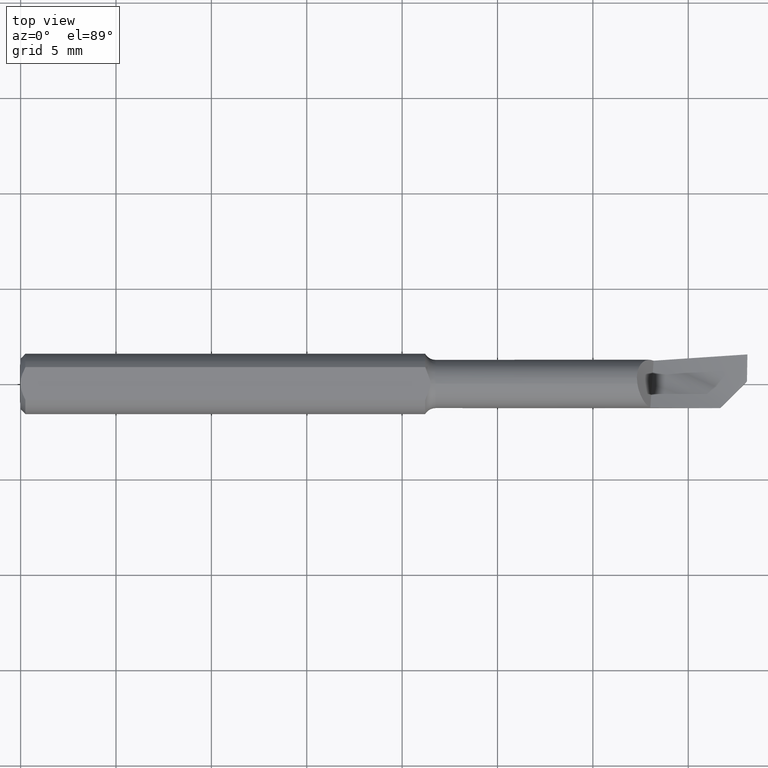
[diagram: clean part render]
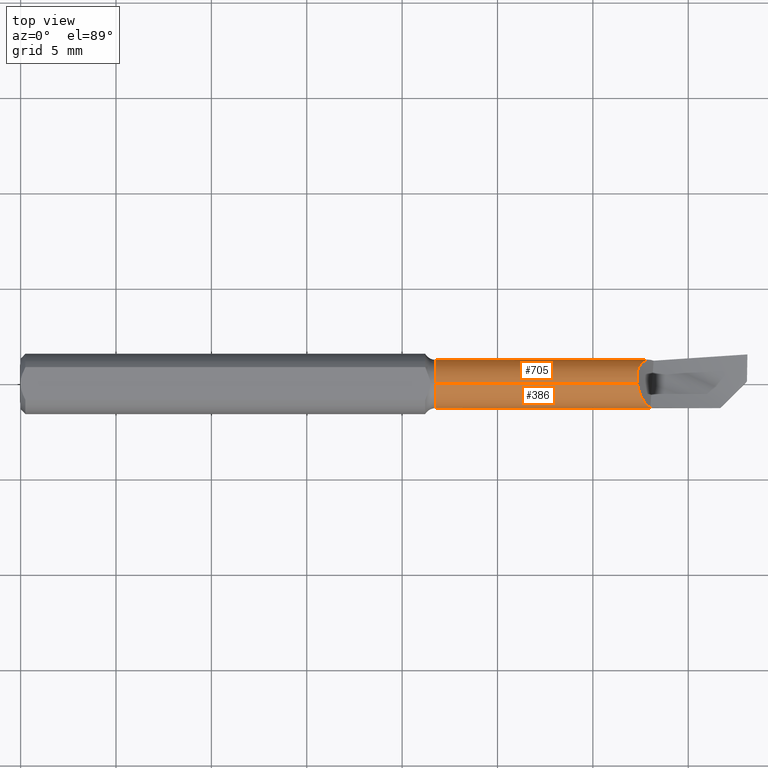
[diagram: same view with one multi-face feature highlighted, each face labeled with its STEP entity id]
A machine part, top view. The highlighted faces form ONE feature: a constant-radius fillet chain: 2 tangent blend faces with common blend radius 1.27 mm. The faces share edges in the B-rep.
Their STEP definitions:
[1] entity #705 (Cylinder):
#14 = EDGE_CURVE ( 'NONE', #366, #439, #29, .T. ) ;
#17 = CARTESIAN_POINT ( 'NONE',  ( 1.271999999999999353, 0.01144693767717875482, 0.04863410044569864421 ) ) ;
#28 = DIRECTION ( 'NONE',  ( 0.000000000000000000, 0.000000000000000000, 1.000000000000000000 ) ) ;
#29 = CIRCLE ( 'NONE', #216, 0.04999999999999994726 ) ;
#51 = CARTESIAN_POINT ( 'NONE',  ( 1.294453643555776967, 0.04971688587173973828, 0.005318045818284486588 ) ) ;
#59 = CARTESIAN_POINT ( 'NONE',  ( 1.298548844892721377, 0.05035006557924973092, -0.001138132953307220956 ) ) ;
#68 = AXIS2_PLACEMENT_3D ( 'NONE', #739, #743, #188 ) ;
#83 = AXIS2_PLACEMENT_3D ( 'NONE', #227, #291, #786 ) ;
#89 = ORIENTED_EDGE ( 'NONE', *, *, #550, .T. ) ;
#101 = CARTESIAN_POINT ( 'NONE',  ( 0.8565633369402790853, 0.000000000000000000, 0.000000000000000000 ) ) ;
#104 = CARTESIAN_POINT ( 'NONE',  ( 1.272000000000000242, 0.01020335030451826469, 0.04894784614835758635 ) ) ;
#112 = CARTESIAN_POINT ( 'NONE',  ( 1.290459041779026705, 0.04864344607906900125, 0.01168911797366625413 ) ) ;
#114 = CARTESIAN_POINT ( 'NONE',  ( 1.272000000000000242, 0.01393758859474910662, 0.04801815931669515397 ) ) ;
#121 = CIRCLE ( 'NONE', #277, 0.05000000000000000278 ) ;
#122 = CARTESIAN_POINT ( 'NONE',  ( 1.273228335987194759, 0.02612359200498260217, 0.04317630147463594192 ) ) ;
#125 = CARTESIAN_POINT ( 'NONE',  ( 1.293750799828678577, 0.04958838834706445070, 0.006429515155052734771 ) ) ;
#127 = EDGE_LOOP ( 'NONE', ( #248, #163, #134, #738, #219, #482, #89, #581, #741 ) ) ;
#134 = ORIENTED_EDGE ( 'NONE', *, *, #14, .F. ) ;
#150 = B_SPLINE_CURVE_WITH_KNOTS ( 'NONE', 3,
 ( #624, #207, #575, #507, #459, #712, #202, #104 ),
 .UNSPECIFIED., .F., .F.,
 ( 4, 2, 1, 1, 4 ),
 ( 0.8765689127104218104, 0.8919977986216192090, 0.9074266845328166076, 0.9382844563552112938, 1.000000000000000000 ),
 .UNSPECIFIED. ) ;
#155 = CARTESIAN_POINT ( 'NONE',  ( 1.310000000000000053, 0.04832009609053197763, -0.01285178251456811117 ) ) ;
#163 = ORIENTED_EDGE ( 'NONE', *, *, #383, .T. ) ;
#168 = CARTESIAN_POINT ( 'NONE',  ( 1.289492521908184974, 0.04823663695637771254, 0.01325218206853705748 ) ) ;
#170 = CARTESIAN_POINT ( 'NONE',  ( 1.276190413930434087, 0.03408954215728249304, 0.03673638363495675824 ) ) ;
#171 = CARTESIAN_POINT ( 'NONE',  ( 1.280343423329403763, 0.04094107647577319847, 0.02875783306268285197 ) ) ;
#175 = CARTESIAN_POINT ( 'NONE',  ( 1.294619589611228694, 0.04974405281156731723, 0.005056162639037449155 ) ) ;
#179 = CARTESIAN_POINT ( 'NONE',  ( 1.281594342010526244, 0.04240060075204869772, 0.02651386867715513351 ) ) ;
#188 = DIRECTION ( 'NONE',  ( 0.000000000000000000, 0.000000000000000000, 1.000000000000000000 ) ) ;
#201 = VERTEX_POINT ( 'NONE', #422 ) ;
#202 = CARTESIAN_POINT ( 'NONE',  ( 1.272042441811594538, 0.008559122833725755705, 0.04929059197129349174 ) ) ;
#207 = CARTESIAN_POINT ( 'NONE',  ( 1.272849093676704513, 0.0003652632116984247434, 0.05000000938892967123 ) ) ;
#216 = AXIS2_PLACEMENT_3D ( 'NONE', #101, #269, #28 ) ;
#219 = ORIENTED_EDGE ( 'NONE', *, *, #405, .T. ) ;
#223 = CARTESIAN_POINT ( 'NONE',  ( 1.282241067984225769, 0.04310296080646883882, 0.02536829013857555895 ) ) ;
#227 = CARTESIAN_POINT ( 'NONE',  ( 1.310000000000000275, 0.000000000000000000, 0.000000000000000000 ) ) ;
#229 = B_SPLINE_CURVE_WITH_KNOTS ( 'NONE', 3,
 ( #236, #731, #122, #170, #527, #480, #171, #179, #223, #410, #665, #597, #421, #728, #288, #168, #112, #284, #412, #125, #470, #51, #175, #59, #657, #794 ),
 .UNSPECIFIED., .F., .F.,
 ( 4, 2, 2, 2, 1, 1, 2, 2, 2, 2, 1, 1, 2, 2, 4 ),
 ( 0.000000000000000000, 0.2500000000000222600, 0.3750000000000348055, 0.4375000000000411338, 0.4687500000000461853, 0.4843750000000487943, 0.4921875000000501266, 0.5000000000000515143, 0.6250000000000524025, 0.6875000000000552891, 0.7187500000000567324, 0.7343750000000597300, 0.7421875000000589528, 0.7500000000000581757, 1.000000000000000000 ),
 .UNSPECIFIED. ) ;
#236 = CARTESIAN_POINT ( 'NONE',  ( 1.272000000000000242, 0.01393758859474910662, 0.04801815931669515397 ) ) ;
#248 = ORIENTED_EDGE ( 'NONE', *, *, #493, .F. ) ;
#249 = CYLINDRICAL_SURFACE ( 'NONE', #68, 0.04999999999999998196 ) ;
#254 = DIRECTION ( 'NONE',  ( -1.000000000000000000, -0.000000000000000000, -0.000000000000000000 ) ) ;
#269 = DIRECTION ( 'NONE',  ( -1.000000000000000000, -0.000000000000000000, -0.000000000000000000 ) ) ;
#271 = DIRECTION ( 'NONE',  ( 0.000000000000000000, 0.000000000000000000, 1.000000000000000000 ) ) ;
#277 = AXIS2_PLACEMENT_3D ( 'NONE', #447, #650, #271 ) ;
#278 = VERTEX_POINT ( 'NONE', #726 ) ;
#284 = CARTESIAN_POINT ( 'NONE',  ( 1.291997436590439863, 0.04914947599330119626, 0.009221393113098667188 ) ) ;
#288 = CARTESIAN_POINT ( 'NONE',  ( 1.286770192305953353, 0.04686926652053527431, 0.01768744621428406869 ) ) ;
#291 = DIRECTION ( 'NONE',  ( 1.000000000000000000, 0.000000000000000000, 0.000000000000000000 ) ) ;
#295 = CARTESIAN_POINT ( 'NONE',  ( 1.306287550036676626, 0.04826060256744394567, -0.01307341729721895295 ) ) ;
#299 = EDGE_CURVE ( 'NONE', #553, #201, #384, .T. ) ;
#310 = CARTESIAN_POINT ( 'NONE',  ( 1.272000000000000242, 0.01020335030451826469, 0.04894784614835758635 ) ) ;
#316 = CARTESIAN_POINT ( 'NONE',  ( 0.8565633369402790853, 0.000000000000000000, 0.04999999999999994726 ) ) ;
#324 = CARTESIAN_POINT ( 'NONE',  ( 1.272899168750858401, -1.934727752666974666E-06, 0.05000828005493417050 ) ) ;
#331 = DIRECTION ( 'NONE',  ( -1.000000000000000000, -0.000000000000000000, -0.000000000000000000 ) ) ;
#366 = VERTEX_POINT ( 'NONE', #316 ) ;
#367 = CIRCLE ( 'NONE', #83, 0.04999999999999998196 ) ;
#373 = CARTESIAN_POINT ( 'NONE',  ( 1.272000000000000242, 0.01393758859474910662, 0.04801815931669515397 ) ) ;
#383 = EDGE_CURVE ( 'NONE', #278, #439, #561, .T. ) ;
#384 = B_SPLINE_CURVE_WITH_KNOTS ( 'NONE', 3,
 ( #373, #615, #17, #310 ),
 .UNSPECIFIED., .F., .F.,
 ( 4, 4 ),
 ( 0.000000000000000000, 1.000000000000000000 ),
 .UNSPECIFIED. ) ;
#405 = EDGE_CURVE ( 'NONE', #423, #201, #150, .T. ) ;
#410 = CARTESIAN_POINT ( 'NONE',  ( 1.283032798228199711, 0.04387149268217474529, 0.02399267082055648453 ) ) ;
#412 = CARTESIAN_POINT ( 'NONE',  ( 1.292788787747433998, 0.04937640292941194303, 0.007956826050339798478 ) ) ;
#421 = CARTESIAN_POINT ( 'NONE',  ( 1.283765447479124688, 0.04453257308422155225, 0.02273489903855676827 ) ) ;
#422 = CARTESIAN_POINT ( 'NONE',  ( 1.272000000000000242, 0.01020335030451826469, 0.04894784614835758635 ) ) ;
#423 = VERTEX_POINT ( 'NONE', #324 ) ;
#432 = EDGE_CURVE ( 'NONE', #647, #602, #623, .T. ) ;
#439 = VERTEX_POINT ( 'NONE', #572 ) ;
#445 = LINE ( 'NONE', #517, #723 ) ;
#447 = CARTESIAN_POINT ( 'NONE',  ( 1.310000000000000275, 0.000000000000000000, 0.000000000000000000 ) ) ;
#452 = CARTESIAN_POINT ( 'NONE',  ( 1.308143505835337672, 0.04829060363433861774, -0.01296266816919170589 ) ) ;
#454 = CARTESIAN_POINT ( 'NONE',  ( 1.306287550036676626, 0.04826060256744394567, -0.01307341729721895295 ) ) ;
#459 = CARTESIAN_POINT ( 'NONE',  ( 1.272497293201978685, 0.003038415295280958578, 0.04992072489029395627 ) ) ;
#463 = EDGE_CURVE ( 'NONE', #602, #625, #121, .T. ) ;
#470 = CARTESIAN_POINT ( 'NONE',  ( 1.294171398377373050, 0.04966715095507902994, 0.005764066976914797302 ) ) ;
#480 = CARTESIAN_POINT ( 'NONE',  ( 1.279566188563690421, 0.03989497064523536696, 0.03019080471472857657 ) ) ;
#482 = ORIENTED_EDGE ( 'NONE', *, *, #299, .F. ) ;
#493 = EDGE_CURVE ( 'NONE', #278, #625, #367, .T. ) ;
#504 = CARTESIAN_POINT ( 'NONE',  ( 0.000000000000000000, 6.123233995736764033E-18, -0.04999999999999998196 ) ) ;
#507 = CARTESIAN_POINT ( 'NONE',  ( 1.272661201849350388, 0.001739078603034123092, 0.04997163544670504137 ) ) ;
#517 = CARTESIAN_POINT ( 'NONE',  ( 0.000000000000000000, 0.000000000000000000, 0.04999999999999998196 ) ) ;
#527 = CARTESIAN_POINT ( 'NONE',  ( 1.277404617331653336, 0.03656502646687217334, 0.03428370353251259522 ) ) ;
#531 = CARTESIAN_POINT ( 'NONE',  ( 1.310000000000000053, 0.04832009609053197763, -0.01285178251456811117 ) ) ;
#548 = VECTOR ( 'NONE', #254, 39.37007874015748143 ) ;
#550 = EDGE_CURVE ( 'NONE', #553, #647, #229, .T. ) ;
#553 = VERTEX_POINT ( 'NONE', #114 ) ;
#561 = LINE ( 'NONE', #504, #548 ) ;
#564 = FACE_OUTER_BOUND ( 'NONE', #127, .T. ) ;
#572 = CARTESIAN_POINT ( 'NONE',  ( 0.8565633369402790853, 6.879453394210251885E-18, -0.04999999999999994726 ) ) ;
#575 = CARTESIAN_POINT ( 'NONE',  ( 1.272777285465328978, 0.0008704818607187571073, 0.04999430972556854341 ) ) ;
#581 = ORIENTED_EDGE ( 'NONE', *, *, #432, .T. ) ;
#597 = CARTESIAN_POINT ( 'NONE',  ( 1.283613383696178722, 0.04439923225234435056, 0.02299476466839427136 ) ) ;
#602 = VERTEX_POINT ( 'NONE', #531 ) ;
#615 = CARTESIAN_POINT ( 'NONE',  ( 1.271999999999999353, 0.01269172579713385811, 0.04832421155105336846 ) ) ;
#623 =( BOUNDED_CURVE ( )  B_SPLINE_CURVE ( 2, ( #454, #452, #155 ),
 .UNSPECIFIED., .F., .T. ) 
 B_SPLINE_CURVE_WITH_KNOTS ( ( 3, 3 ),
 ( 0.6565203364799460095, 0.6630843236817458575 ),
 .UNSPECIFIED. ) 
 CURVE ( )  GEOMETRIC_REPRESENTATION_ITEM ( )  RATIONAL_B_SPLINE_CURVE ( ( 0.9832262161177709459, 0.9831524091544407984, 0.9830837847938763696 ) ) 
 REPRESENTATION_ITEM ( '' )  );
#624 = CARTESIAN_POINT ( 'NONE',  ( 1.272899168750858401, -1.934727752666974666E-06, 0.05000828005493417050 ) ) ;
#625 = VERTEX_POINT ( 'NONE', #752 ) ;
#647 = VERTEX_POINT ( 'NONE', #295 ) ;
#650 = DIRECTION ( 'NONE',  ( -1.000000000000000000, -0.000000000000000000, -0.000000000000000000 ) ) ;
#657 = CARTESIAN_POINT ( 'NONE',  ( 1.302398465281337181, 0.04983827704827348271, -0.007250557932622296586 ) ) ;
#665 = CARTESIAN_POINT ( 'NONE',  ( 1.283380086177330126, 0.04418965165825676500, 0.02339499333349702795 ) ) ;
#705 = ADVANCED_FACE ( 'NONE', ( #564 ), #249, .T. ) ;
#712 = CARTESIAN_POINT ( 'NONE',  ( 1.272186357127614409, 0.006042283344330142379, 0.04968545585809298892 ) ) ;
#723 = VECTOR ( 'NONE', #331, 39.37007874015748143 ) ;
#726 = CARTESIAN_POINT ( 'NONE',  ( 1.310000000000000275, 6.123233995736764033E-18, -0.04999999999999998196 ) ) ;
#728 = CARTESIAN_POINT ( 'NONE',  ( 1.285191612584863030, 0.04576396476698291887, 0.02030366164764039680 ) ) ;
#731 = CARTESIAN_POINT ( 'NONE',  ( 1.272160993705591325, 0.02009980653827519309, 0.04622953819193728608 ) ) ;
#738 = ORIENTED_EDGE ( 'NONE', *, *, #789, .F. ) ;
#739 = CARTESIAN_POINT ( 'NONE',  ( 0.000000000000000000, 0.000000000000000000, 0.000000000000000000 ) ) ;
#741 = ORIENTED_EDGE ( 'NONE', *, *, #463, .T. ) ;
#743 = DIRECTION ( 'NONE',  ( -1.000000000000000000, -0.000000000000000000, -0.000000000000000000 ) ) ;
#752 = CARTESIAN_POINT ( 'NONE',  ( 1.310000000000000497, 0.04792461142857649958, -0.01425593277972206883 ) ) ;
#786 = DIRECTION ( 'NONE',  ( 0.000000000000000000, 0.000000000000000000, 1.000000000000000000 ) ) ;
#789 = EDGE_CURVE ( 'NONE', #423, #366, #445, .T. ) ;
#794 = CARTESIAN_POINT ( 'NONE',  ( 1.306287550036676626, 0.04826060256744394567, -0.01307341729721895295 ) ) ;
[2] entity #386 (Cylinder):
#5 = ORIENTED_EDGE ( 'NONE', *, *, #322, .T. ) ;
#6 = B_SPLINE_CURVE_WITH_KNOTS ( 'NONE', 3,
 ( #636, #210, #94, #329, #716, #707, #395, #160, #641, #100, #332, #579, #37, #399, #473, #406, #797, #721, #725 ),
 .UNSPECIFIED., .F., .F.,
 ( 4, 2, 2, 2, 2, 2, 1, 2, 2, 4 ),
 ( 0.000000000000000000, 0.2191422281775968484, 0.4382844563551937522, 0.4930700133995919443, 0.4999182080301445286, 0.5067664026606971683, 0.5204627919217991172, 0.5478555704440031260, 0.6574266845328092801, 0.8765689127104218104 ),
 .UNSPECIFIED. ) ;
#19 = CARTESIAN_POINT ( 'NONE',  ( 1.371696910058134877, -0.04974385689216415107, 0.006738323171264287530 ) ) ;
#31 = CARTESIAN_POINT ( 'NONE',  ( 1.443537192659749113, -0.04994767138989437971, 0.002286946157460104621 ) ) ;
#37 = CARTESIAN_POINT ( 'NONE',  ( 1.280775427694834878, -0.02637246049611337989, 0.04249233737715295972 ) ) ;
#54 = CARTESIAN_POINT ( 'NONE',  ( 1.493328199247725419, 0.000000000000000000, -0.05000000000000007910 ) ) ;
#60 = CARTESIAN_POINT ( 'NONE',  ( 1.493326820018359369, -0.0001580440312843365918, -0.04999999999999998890 ) ) ;
#70 = CARTESIAN_POINT ( 'NONE',  ( 1.363095361444575326, 3.468166398206584357E-18, -0.05000000000000006523 ) ) ;
#73 = CARTESIAN_POINT ( 'NONE',  ( 1.345406193661088823, -0.002635090598034378184, -0.05000000000000007910 ) ) ;
#74 = EDGE_CURVE ( 'NONE', #439, #366, #678, .T. ) ;
#94 = CARTESIAN_POINT ( 'NONE',  ( 1.292699085532490688, -0.04424179223687363383, 0.02397738318192297116 ) ) ;
#100 = CARTESIAN_POINT ( 'NONE',  ( 1.281612001408798385, -0.02810700612716404700, 0.04135226487454118222 ) ) ;
#117 = CARTESIAN_POINT ( 'NONE',  ( 1.299660611757699202, -0.04875608591997589170, 0.01108350512085068407 ) ) ;
#118 = CARTESIAN_POINT ( 'NONE',  ( 1.363095361444575326, 3.468166398206584357E-18, -0.05000000000000006523 ) ) ;
#123 = CARTESIAN_POINT ( 'NONE',  ( 1.443537192659749113, -0.04994767138989437971, 0.002286946157460104621 ) ) ;
#138 = VERTEX_POINT ( 'NONE', #123 ) ;
#141 = CARTESIAN_POINT ( 'NONE',  ( 1.493328199247725419, 0.000000000000000000, -0.05000000000000007910 ) ) ;
#143 = FACE_OUTER_BOUND ( 'NONE', #198, .T. ) ;
#146 = VERTEX_POINT ( 'NONE', #60 ) ;
#158 = VERTEX_POINT ( 'NONE', #654 ) ;
#160 = CARTESIAN_POINT ( 'NONE',  ( 1.281755511638910994, -0.02839631503305559829, 0.04115414006569832750 ) ) ;
#186 =( BOUNDED_CURVE ( )  B_SPLINE_CURVE ( 3, ( #233, #362, #658, #54 ),
 .UNSPECIFIED., .F., .T. ) 
 B_SPLINE_CURVE_WITH_KNOTS ( ( 4, 4 ),
 ( 0.06779174774989392416, 0.07095262296443062555 ),
 .UNSPECIFIED. ) 
 CURVE ( )  GEOMETRIC_REPRESENTATION_ITEM ( )  RATIONAL_B_SPLINE_CURVE ( ( 1.000000000000000000, 0.9999991674058297253, 0.9999991674058297253, 1.000000000000000000 ) ) 
 REPRESENTATION_ITEM ( '' )  );
#197 = CYLINDRICAL_SURFACE ( 'NONE', #626, 0.04999999999999998196 ) ;
#198 = EDGE_LOOP ( 'NONE', ( #414, #785, #5, #382, #475, #679, #620, #616, #479, #502 ) ) ;
#209 = EDGE_CURVE ( 'NONE', #146, #397, #186, .T. ) ;
#210 = CARTESIAN_POINT ( 'NONE',  ( 1.295961142263513555, -0.04716225745303896655, 0.01809801130944913364 ) ) ;
#233 = CARTESIAN_POINT ( 'NONE',  ( 1.493326820018359369, -0.0001580440312843365918, -0.04999999999999998890 ) ) ;
#241 = CARTESIAN_POINT ( 'NONE',  ( 1.300000000000000044, 0.000000000000000000, -0.05000000000000007910 ) ) ;
#254 = DIRECTION ( 'NONE',  ( -1.000000000000000000, -0.000000000000000000, -0.000000000000000000 ) ) ;
#261 = VERTEX_POINT ( 'NONE', #118 ) ;
#262 = CARTESIAN_POINT ( 'NONE',  ( 1.493326820018359369, -0.0001580440312843365918, -0.04999999999999998890 ) ) ;
#278 = VERTEX_POINT ( 'NONE', #726 ) ;
#308 = CARTESIAN_POINT ( 'NONE',  ( 1.443537192659749113, -0.04994767138989437971, 0.002286946157460104621 ) ) ;
#316 = CARTESIAN_POINT ( 'NONE',  ( 0.8565633369402790853, 0.000000000000000000, 0.04999999999999994726 ) ) ;
#322 = EDGE_CURVE ( 'NONE', #158, #261, #742, .T. ) ;
#324 = CARTESIAN_POINT ( 'NONE',  ( 1.272899168750858401, -1.934727752666974666E-06, 0.05000828005493417050 ) ) ;
#329 = CARTESIAN_POINT ( 'NONE',  ( 1.287149769551636735, -0.03773751753160826256, 0.03328859947692325294 ) ) ;
#331 = DIRECTION ( 'NONE',  ( -1.000000000000000000, -0.000000000000000000, -0.000000000000000000 ) ) ;
#332 = CARTESIAN_POINT ( 'NONE',  ( 1.281497475429196342, -0.02787422981254822352, 0.04150984525899750754 ) ) ;
#335 = CARTESIAN_POINT ( 'NONE',  ( 1.463038708143847400, -0.03044615590579615241, -0.04990401287507313655 ) ) ;
#345 = DIRECTION ( 'NONE',  ( 0.000000000000000000, 8.881784197001252323E-15, 1.000000000000000000 ) ) ;
#347 = DIRECTION ( 'NONE',  ( 1.000000000000000000, 0.000000000000000000, 0.000000000000000000 ) ) ;
#350 =( BOUNDED_CURVE ( )  B_SPLINE_CURVE ( 2, ( #308, #19, #607 ),
 .UNSPECIFIED., .F., .T. ) 
 B_SPLINE_CURVE_WITH_KNOTS ( ( 3, 3 ),
 ( 0.1010291644753896767, 0.3552042555019970793 ),
 .UNSPECIFIED. ) 
 CURVE ( )  GEOMETRIC_REPRESENTATION_ITEM ( )  RATIONAL_B_SPLINE_CURVE ( ( 0.9848445176714386573, 0.9802899546835003308, 0.9835064192122493498 ) ) 
 REPRESENTATION_ITEM ( '' )  );
#362 = CARTESIAN_POINT ( 'NONE',  ( 1.493327289986609019, -0.0001053624852201671719, -0.04999991674056563501 ) ) ;
#366 = VERTEX_POINT ( 'NONE', #316 ) ;
#380 =( BOUNDED_CURVE ( )  B_SPLINE_CURVE ( 3, ( #31, #758, #335, #262 ),
 .UNSPECIFIED., .F., .F. ) 
 B_SPLINE_CURVE_WITH_KNOTS ( ( 4, 4 ),
 ( 6.237430420985751844, 7.850820755980532972 ),
 .UNSPECIFIED. ) 
 CURVE ( )  GEOMETRIC_REPRESENTATION_ITEM ( )  RATIONAL_B_SPLINE_CURVE ( ( 1.000000000000000000, 0.7945922073802837993, 0.7945922073802837993, 1.000000000000000000 ) ) 
 REPRESENTATION_ITEM ( '' )  );
#382 = ORIENTED_EDGE ( 'NONE', *, *, #668, .T. ) ;
#383 = EDGE_CURVE ( 'NONE', #278, #439, #561, .T. ) ;
#386 = ADVANCED_FACE ( 'NONE', ( #143 ), #197, .T. ) ;
#395 = CARTESIAN_POINT ( 'NONE',  ( 1.282193181959237815, -0.02926987638345528164, 0.04054833245315252188 ) ) ;
#397 = VERTEX_POINT ( 'NONE', #141 ) ;
#399 = CARTESIAN_POINT ( 'NONE',  ( 1.280315083923952768, -0.02535752685491816580, 0.04309998557854280432 ) ) ;
#406 = CARTESIAN_POINT ( 'NONE',  ( 1.277763235152240995, -0.01916188622190297119, 0.04627695561704760208 ) ) ;
#408 = VECTOR ( 'NONE', #617, 39.37007874015748143 ) ;
#414 = ORIENTED_EDGE ( 'NONE', *, *, #383, .F. ) ;
#423 = VERTEX_POINT ( 'NONE', #324 ) ;
#434 = CARTESIAN_POINT ( 'NONE',  ( 1.327708185014136122, -0.005192571617713454164, -0.04979257458020232285 ) ) ;
#438 = DIRECTION ( 'NONE',  ( -1.000000000000000000, -0.000000000000000000, -0.000000000000000000 ) ) ;
#439 = VERTEX_POINT ( 'NONE', #572 ) ;
#442 = CARTESIAN_POINT ( 'NONE',  ( 0.000000000000000000, 0.000000000000000000, 0.000000000000000000 ) ) ;
#445 = LINE ( 'NONE', #517, #723 ) ;
#473 = CARTESIAN_POINT ( 'NONE',  ( 1.278822647458394579, -0.02195299935248466727, 0.04503190669431780813 ) ) ;
#475 = ORIENTED_EDGE ( 'NONE', *, *, #209, .F. ) ;
#479 = ORIENTED_EDGE ( 'NONE', *, *, #789, .T. ) ;
#484 = EDGE_CURVE ( 'NONE', #570, #423, #6, .T. ) ;
#491 = EDGE_CURVE ( 'NONE', #158, #278, #534, .T. ) ;
#502 = ORIENTED_EDGE ( 'NONE', *, *, #74, .F. ) ;
#503 = LINE ( 'NONE', #241, #408 ) ;
#504 = CARTESIAN_POINT ( 'NONE',  ( 0.000000000000000000, 6.123233995736764033E-18, -0.04999999999999998196 ) ) ;
#517 = CARTESIAN_POINT ( 'NONE',  ( 0.000000000000000000, 0.000000000000000000, 0.04999999999999998196 ) ) ;
#534 = CIRCLE ( 'NONE', #775, 0.04999999999999998196 ) ;
#541 = CARTESIAN_POINT ( 'NONE',  ( 1.310000000000000275, 0.000000000000000000, 0.000000000000000000 ) ) ;
#548 = VECTOR ( 'NONE', #254, 39.37007874015748143 ) ;
#561 = LINE ( 'NONE', #504, #548 ) ;
#570 = VERTEX_POINT ( 'NONE', #117 ) ;
#572 = CARTESIAN_POINT ( 'NONE',  ( 0.8565633369402790853, 6.879453394210251885E-18, -0.04999999999999994726 ) ) ;
#579 = CARTESIAN_POINT ( 'NONE',  ( 1.281254690712540167, -0.02737515072089485510, 0.04184209468087109196 ) ) ;
#607 = CARTESIAN_POINT ( 'NONE',  ( 1.299660611757699202, -0.04875608591997589170, 0.01108350512085068407 ) ) ;
#616 = ORIENTED_EDGE ( 'NONE', *, *, #484, .T. ) ;
#617 = DIRECTION ( 'NONE',  ( 1.000000000000000000, -0.000000000000000000, -0.000000000000000000 ) ) ;
#620 = ORIENTED_EDGE ( 'NONE', *, *, #674, .T. ) ;
#626 = AXIS2_PLACEMENT_3D ( 'NONE', #442, #438, #687 ) ;
#633 = DIRECTION ( 'NONE',  ( 0.000000000000000000, 0.000000000000000000, 1.000000000000000000 ) ) ;
#636 = CARTESIAN_POINT ( 'NONE',  ( 1.299660611757699202, -0.04875608591997589170, 0.01108350512085068407 ) ) ;
#641 = CARTESIAN_POINT ( 'NONE',  ( 1.281707357578651729, -0.02829962378913294246, 0.04122068530580479118 ) ) ;
#651 = DIRECTION ( 'NONE',  ( -1.000000000000000000, -0.000000000000000000, -0.000000000000000000 ) ) ;
#654 = CARTESIAN_POINT ( 'NONE',  ( 1.310000000000000275, -0.007665639755238228860, -0.04940888550800268120 ) ) ;
#658 = CARTESIAN_POINT ( 'NONE',  ( 1.493327739505198926, -5.268127550667081431E-05, -0.05000000000000000278 ) ) ;
#668 = EDGE_CURVE ( 'NONE', #261, #397, #503, .T. ) ;
#674 = EDGE_CURVE ( 'NONE', #138, #570, #350, .T. ) ;
#677 = AXIS2_PLACEMENT_3D ( 'NONE', #704, #651, #633 ) ;
#678 = CIRCLE ( 'NONE', #677, 0.04999999999999994726 ) ;
#679 = ORIENTED_EDGE ( 'NONE', *, *, #764, .F. ) ;
#687 = DIRECTION ( 'NONE',  ( 0.000000000000000000, 0.000000000000000000, 1.000000000000000000 ) ) ;
#690 = CARTESIAN_POINT ( 'NONE',  ( 1.310000000000000275, -0.007665639755238228860, -0.04940888550800268120 ) ) ;
#704 = CARTESIAN_POINT ( 'NONE',  ( 0.8565633369402790853, 0.000000000000000000, 0.000000000000000000 ) ) ;
#707 = CARTESIAN_POINT ( 'NONE',  ( 1.282612684665259239, -0.03007022766022762750, 0.03996076600457210137 ) ) ;
#716 = CARTESIAN_POINT ( 'NONE',  ( 1.284862510301805205, -0.03415897939610565426, 0.03674869665685863429 ) ) ;
#721 = CARTESIAN_POINT ( 'NONE',  ( 1.273677005418105024, -0.005207475339341590022, 0.04999986639527419230 ) ) ;
#723 = VECTOR ( 'NONE', #331, 39.37007874015748143 ) ;
#725 = CARTESIAN_POINT ( 'NONE',  ( 1.272899168750858401, -1.934727752666974666E-06, 0.05000828005493417050 ) ) ;
#726 = CARTESIAN_POINT ( 'NONE',  ( 1.310000000000000275, 6.123233995736764033E-18, -0.04999999999999998196 ) ) ;
#742 = B_SPLINE_CURVE_WITH_KNOTS ( 'NONE', 3,
 ( #690, #434, #73, #70 ),
 .UNSPECIFIED., .F., .F.,
 ( 4, 4 ),
 ( 2.924343426157115507E-05, 0.001391931225923316627 ),
 .UNSPECIFIED. ) ;
#758 = CARTESIAN_POINT ( 'NONE',  ( 1.442151840099703763, -0.05133302394993968093, -0.02796961856426415094 ) ) ;
#764 = EDGE_CURVE ( 'NONE', #138, #146, #380, .T. ) ;
#775 = AXIS2_PLACEMENT_3D ( 'NONE', #541, #347, #345 ) ;
#785 = ORIENTED_EDGE ( 'NONE', *, *, #491, .F. ) ;
#789 = EDGE_CURVE ( 'NONE', #423, #366, #445, .T. ) ;
#797 = CARTESIAN_POINT ( 'NONE',  ( 1.274988608832656301, -0.01078424336001627092, 0.04917965142419519070 ) ) ;